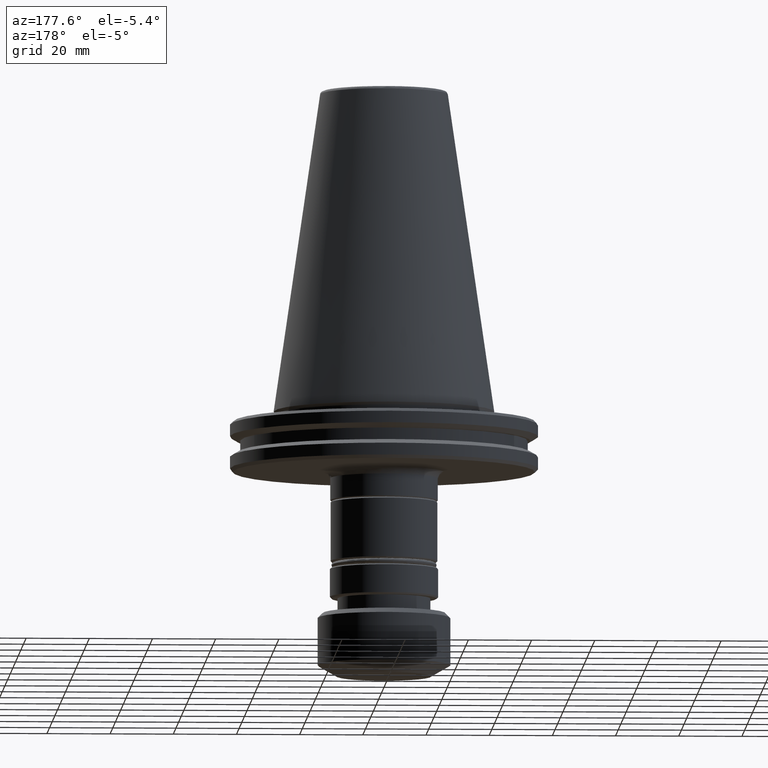
[diagram: clean part render]
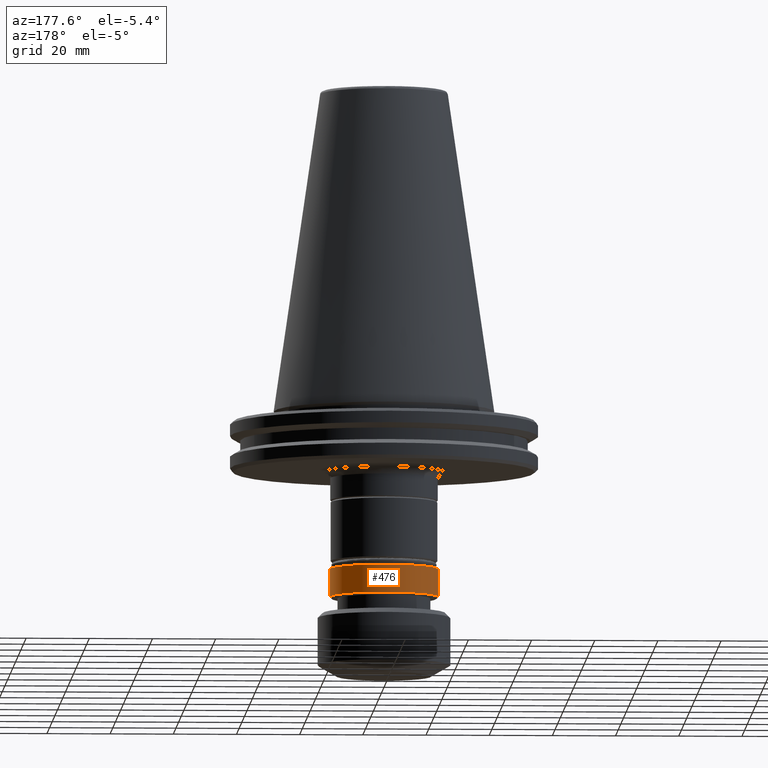
[diagram: same view with one face highlighted and labeled with its STEP entity id]
A machine part, auxiliary view. The second image highlights one B-rep face of the part: STEP entity #476.
In plain terms, the highlighted cylindrical surface (partial cylindrical patch) has radius 17.15 mm, axis along (0, 0, 1).
Its self-contained STEP definition (entity closure, byte-faithful):
#109 = VERTEX_POINT ( 'NONE', #1741 ) ;
#175 = CARTESIAN_POINT ( 'NONE',  ( -17.14999999999999900, 2.100269260537710700E-015, -58.80000000000001800 ) ) ;
#253 = EDGE_CURVE ( 'NONE', #740, #514, #497, .T. ) ;
#276 = ORIENTED_EDGE ( 'NONE', *, *, #357, .F. ) ;
#357 = EDGE_CURVE ( 'NONE', #514, #109, #643, .T. ) ;
#476 = ADVANCED_FACE ( 'NONE', ( #2221 ), #683, .T. ) ;
#497 = LINE ( 'NONE', #1988, #1619 ) ;
#505 = DIRECTION ( 'NONE',  ( 1.000000000000000000, 0.0000000000000000000, 0.0000000000000000000 ) ) ;
#509 = DIRECTION ( 'NONE',  ( 0.0000000000000000000, 0.0000000000000000000, 1.000000000000000000 ) ) ;
#511 = CARTESIAN_POINT ( 'NONE',  ( 0.0000000000000000000, 0.0000000000000000000, -58.80000000000001800 ) ) ;
#514 = VERTEX_POINT ( 'NONE', #1235 ) ;
#515 = ORIENTED_EDGE ( 'NONE', *, *, #1427, .T. ) ;
#539 = ORIENTED_EDGE ( 'NONE', *, *, #253, .F. ) ;
#594 = CARTESIAN_POINT ( 'NONE',  ( -17.14999999999999900, 2.100269260537710700E-015, 0.0000000000000000000 ) ) ;
#643 = CIRCLE ( 'NONE', #2138, 17.14999999999999500 ) ;
#683 = CYLINDRICAL_SURFACE ( 'NONE', #2052, 17.14999999999999900 ) ;
#740 = VERTEX_POINT ( 'NONE', #972 ) ;
#812 = ORIENTED_EDGE ( 'NONE', *, *, #832, .T. ) ;
#829 = DIRECTION ( 'NONE',  ( 0.0000000000000000000, 0.0000000000000000000, 1.000000000000000000 ) ) ;
#832 = EDGE_CURVE ( 'NONE', #740, #1208, #1223, .T. ) ;
#972 = CARTESIAN_POINT ( 'NONE',  ( 17.14999999999999900, 0.0000000000000000000, -58.80000000000001800 ) ) ;
#1208 = VERTEX_POINT ( 'NONE', #175 ) ;
#1223 = CIRCLE ( 'NONE', #2086, 17.14999999999999900 ) ;
#1235 = CARTESIAN_POINT ( 'NONE',  ( 17.14999999999999500, 0.0000000000000000000, -50.00000000000000700 ) ) ;
#1267 = DIRECTION ( 'NONE',  ( 0.0000000000000000000, 0.0000000000000000000, 1.000000000000000000 ) ) ;
#1272 = CARTESIAN_POINT ( 'NONE',  ( 0.0000000000000000000, 0.0000000000000000000, 0.0000000000000000000 ) ) ;
#1284 = DIRECTION ( 'NONE',  ( 1.000000000000000000, 0.0000000000000000000, 0.0000000000000000000 ) ) ;
#1420 = EDGE_LOOP ( 'NONE', ( #812, #515, #276, #539 ) ) ;
#1427 = EDGE_CURVE ( 'NONE', #1208, #109, #2375, .T. ) ;
#1449 = DIRECTION ( 'NONE',  ( -1.000000000000000000, 0.0000000000000000000, 0.0000000000000000000 ) ) ;
#1451 = DIRECTION ( 'NONE',  ( -0.0000000000000000000, -0.0000000000000000000, 1.000000000000000000 ) ) ;
#1455 = CARTESIAN_POINT ( 'NONE',  ( 0.0000000000000000000, 0.0000000000000000000, -50.00000000000000700 ) ) ;
#1535 = DIRECTION ( 'NONE',  ( 0.0000000000000000000, 0.0000000000000000000, 1.000000000000000000 ) ) ;
#1542 = VECTOR ( 'NONE', #829, 1000.000000000000000 ) ;
#1619 = VECTOR ( 'NONE', #1535, 1000.000000000000000 ) ;
#1741 = CARTESIAN_POINT ( 'NONE',  ( -17.14999999999999500, 2.100269260537710300E-015, -50.00000000000000700 ) ) ;
#1988 = CARTESIAN_POINT ( 'NONE',  ( 17.14999999999999900, 0.0000000000000000000, 0.0000000000000000000 ) ) ;
#2052 = AXIS2_PLACEMENT_3D ( 'NONE', #1272, #1267, #1284 ) ;
#2086 = AXIS2_PLACEMENT_3D ( 'NONE', #511, #509, #505 ) ;
#2138 = AXIS2_PLACEMENT_3D ( 'NONE', #1455, #1451, #1449 ) ;
#2221 = FACE_OUTER_BOUND ( 'NONE', #1420, .T. ) ;
#2375 = LINE ( 'NONE', #594, #1542 ) ;